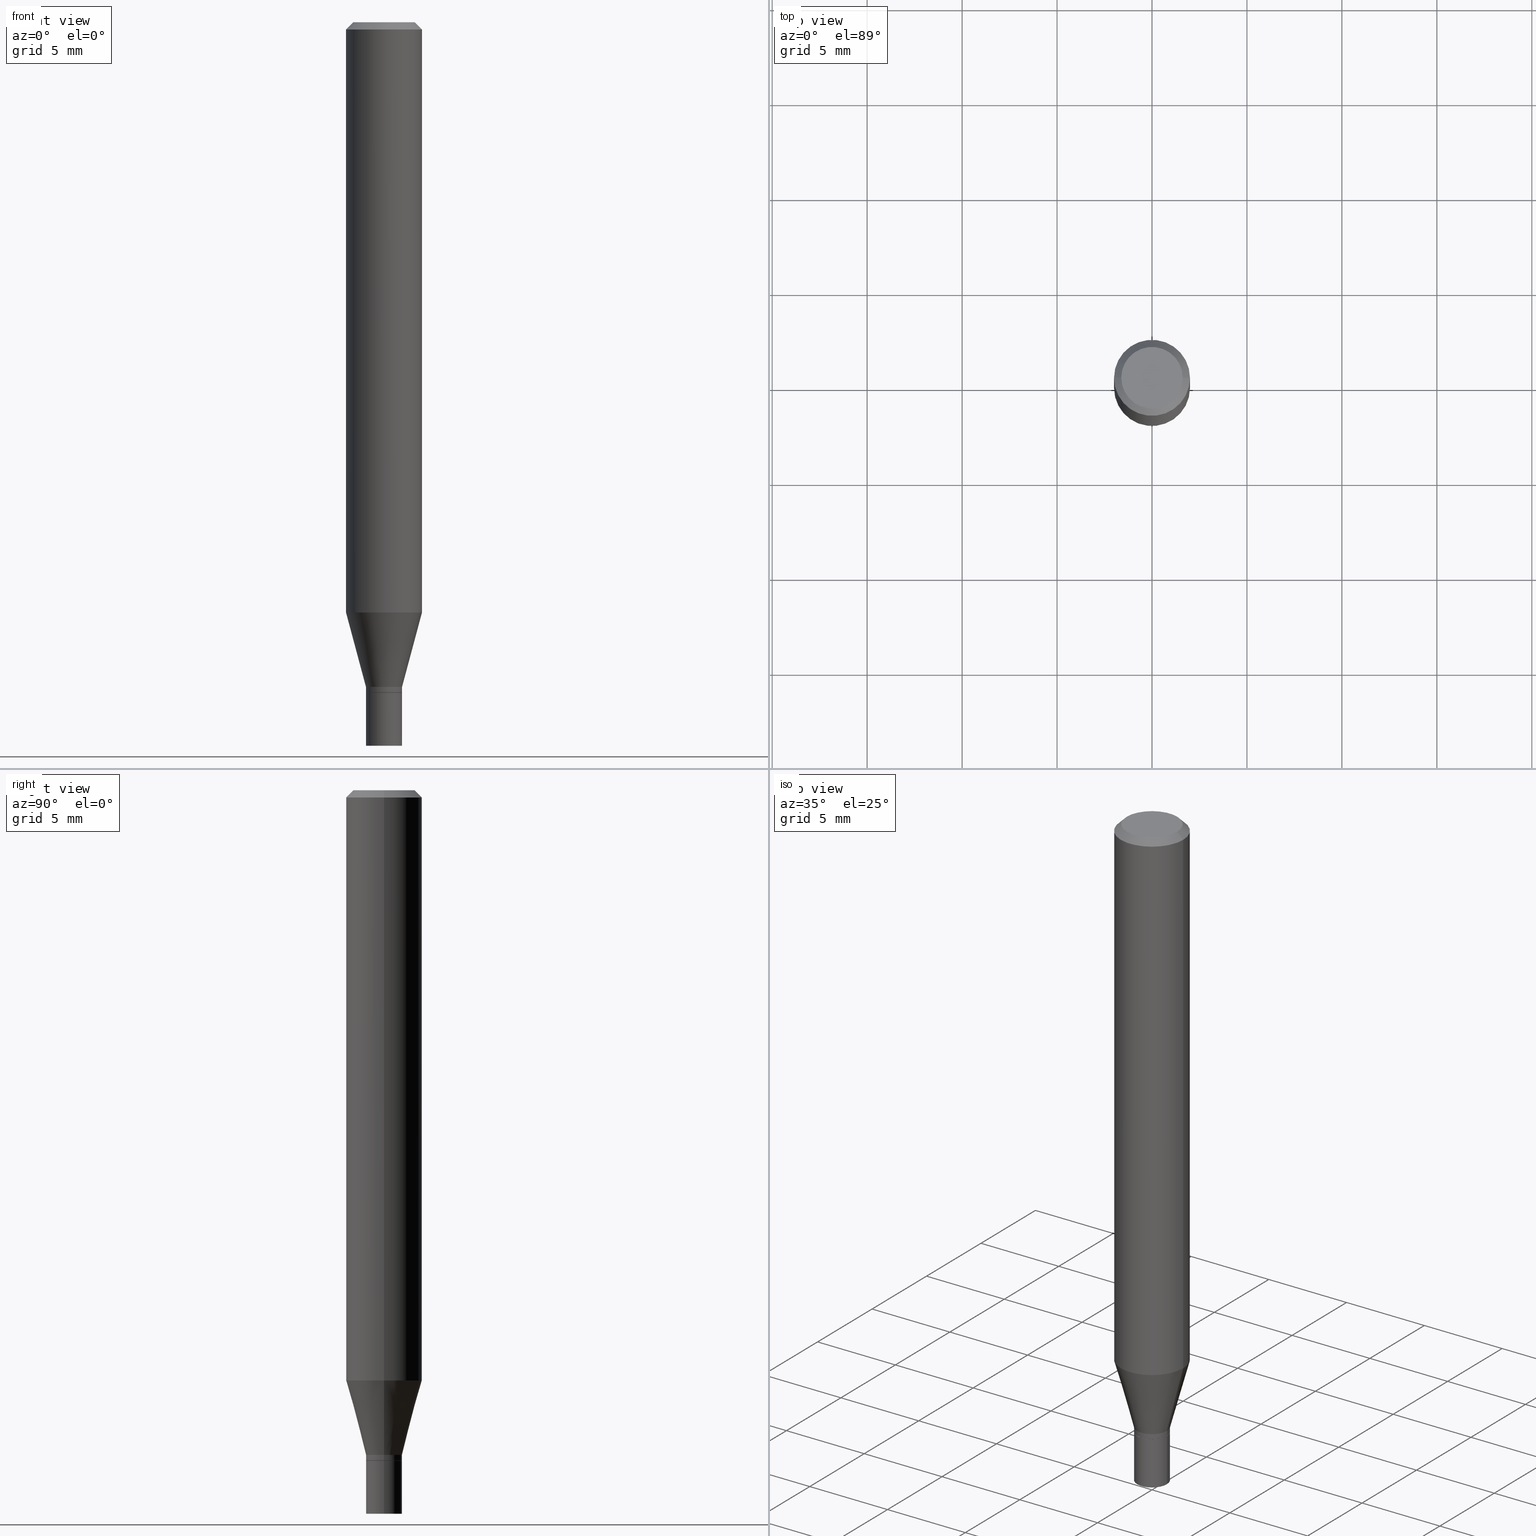
[diagram: canonical four-view strip — front | top / right | iso, engineering-drawing reading convention]
A machine part, canonical four-view strip (front | top / right | iso — engineering-drawing reading convention). The complete STEP part file that produces these views, byte-faithful:
ISO-10303-21;
HEADER;
FILE_DESCRIPTION (( 'STEP AP203' ),
    '1' );
FILE_NAME ('02900.STEP',
    '2024-03-18T22:07:04',
    ( '' ),
    ( '' ),
    'SwSTEP 2.0',
    'SolidWorks 2023',
    '' );
FILE_SCHEMA (( 'CONFIG_CONTROL_DESIGN' ));
ENDSEC;

DATA;
#1 = EDGE_CURVE ( 'NONE', #303, #388, #242, .T. ) ;
#2 = FACE_OUTER_BOUND ( 'NONE', #323, .T. ) ;
#3 = ORIENTED_EDGE ( 'NONE', *, *, #277, .T. ) ;
#4 = DIRECTION ( 'NONE',  ( 2.438088387897960049E-29, -3.491481338843145188E-15, -1.000000000000000000 ) ) ;
#5 = DIRECTION ( 'NONE',  ( 1.000000000000000000, -6.982962677686274599E-15, 0.000000000000000000 ) ) ;
#6 = APPROVAL_STATUS ( 'not_yet_approved' ) ;
#7 = EDGE_CURVE ( 'NONE', #331, #12, #413, .T. ) ;
#8 = CIRCLE ( 'NONE', #70, 0.07875000000000000056 ) ;
#9 = AXIS2_PLACEMENT_3D ( 'NONE', #279, #240, #425 ) ;
#10 = EDGE_LOOP ( 'NONE', ( #258, #186, #53, #362 ) ) ;
#11 = LOCAL_TIME ( 18, 7, 4.000000000000000000, #189 ) ;
#12 = VERTEX_POINT ( 'NONE', #421 ) ;
#13 = CARTESIAN_POINT ( 'NONE',  ( -0.07875000000000000056, -3.712902429742301625E-15, -1.223679699107026897 ) ) ;
#14 = ORIENTED_EDGE ( 'NONE', *, *, #400, .F. ) ;
#15 = DIRECTION ( 'NONE',  ( 1.000000000000000000, -6.982962677686266711E-15, 4.876176775795936353E-29 ) ) ;
#16 = FACE_OUTER_BOUND ( 'NONE', #436, .T. ) ;
#17 = ORIENTED_EDGE ( 'NONE', *, *, #175, .T. ) ;
#18 = PERSON_AND_ORGANIZATION_ROLE ( 'design_owner' ) ;
#19 = ORIENTED_EDGE ( 'NONE', *, *, #319, .T. ) ;
#20 = AXIS2_PLACEMENT_3D ( 'NONE', #341, #203, #5 ) ;
#21 = VECTOR ( 'NONE', #338, 39.37007874015748143 ) ;
#22 = LOCAL_TIME ( 18, 7, 4.000000000000000000, #65 ) ;
#23 = VERTEX_POINT ( 'NONE', #111 ) ;
#24 = EDGE_CURVE ( 'NONE', #238, #457, #8, .T. ) ;
#25 = DIRECTION ( 'NONE',  ( -2.445468806185136597E-29, 3.491481338843145583E-15, 1.000000000000000000 ) ) ;
#26 = ORIENTED_EDGE ( 'NONE', *, *, #434, .F. ) ;
#27 = PERSON_AND_ORGANIZATION_ROLE ( 'creator' ) ;
#28 = CARTESIAN_POINT ( 'NONE',  ( 0.03690000000000000224, -5.110132087530827195E-15, -1.389799999999999924 ) ) ;
#29 = EDGE_LOOP ( 'NONE', ( #410, #148, #19, #288 ) ) ;
#30 = CARTESIAN_POINT ( 'NONE',  ( 2.992470532928248490E-29, -4.272454834153379638E-15, -1.223679699107026897 ) ) ;
#31 = DIRECTION ( 'NONE',  ( 1.000000000000000000, -6.982962677686265922E-15, 4.852736867747365646E-29 ) ) ;
#32 = ORIENTED_EDGE ( 'NONE', *, *, #7, .T. ) ;
#33 = DIRECTION ( 'NONE',  ( -2.445468806185136877E-29, 3.491481338843145188E-15, 1.000000000000000000 ) ) ;
#34 = EDGE_CURVE ( 'NONE', #181, #12, #115, .T. ) ;
#35 = DIRECTION ( 'NONE',  ( 1.000000000000000000, -6.982962677686265922E-15, 4.852736867747365646E-29 ) ) ;
#36 = MANIFOLD_SOLID_BREP ( 'Body-Move/Copy2[1]', #295 ) ;
#37 = AXIS2_PLACEMENT_3D ( 'NONE', #265, #282, #126 ) ;
#38 = CYLINDRICAL_SURFACE ( 'NONE', #183, 0.03740000000000000269 ) ;
#39 = PERSON ( 'UNSPECIFIED', 'UNSPECIFIED', 'UNSPECIFIED', ('UNSPECIFIED'), ('UNSPECIFIED'), ('UNSPECIFIED') ) ;
#40 = CARTESIAN_POINT ( 'NONE',  ( -0.07875000000000000056, 4.975360907851462665E-16, -0.01499999999999999944 ) ) ;
#41 = CYLINDRICAL_SURFACE ( 'NONE', #218, 0.03739999999999991942 ) ;
#42 = CONICAL_SURFACE ( 'NONE', #458, 0.03739999999999991942, 0.2617993877991496854 ) ;
#43 = DIRECTION ( 'NONE',  ( -2.445468806185136597E-29, 3.491481338843145583E-15, 1.000000000000000000 ) ) ;
#44 = EDGE_CURVE ( 'NONE', #12, #331, #327, .T. ) ;
#45 = APPROVAL_ROLE ( '' ) ;
#46 = ADVANCED_FACE ( 'NONE', ( #105 ), #246, .T. ) ;
#47 = PERSON_AND_ORGANIZATION ( #39, #201 ) ;
#48 = ORIENTED_EDGE ( 'NONE', *, *, #227, .T. ) ;
#49 = CYLINDRICAL_SURFACE ( 'NONE', #184, 0.03740000000000000269 ) ;
#50 = AXIS2_PLACEMENT_3D ( 'NONE', #428, #426, #106 ) ;
#51 = ORIENTED_EDGE ( 'NONE', *, *, #286, .F. ) ;
#52 = VERTEX_POINT ( 'NONE', #307 ) ;
#53 = ORIENTED_EDGE ( 'NONE', *, *, #400, .T. ) ;
#54 = DIRECTION ( 'NONE',  ( 1.000000000000000000, 0.000000000000000000, 0.000000000000000000 ) ) ;
#55 = ORIENTED_EDGE ( 'NONE', *, *, #34, .F. ) ;
#56 = ORIENTED_EDGE ( 'NONE', *, *, #180, .T. ) ;
#57 = CC_DESIGN_APPROVAL ( #292, ( #346 ) ) ;
#58 = DATE_AND_TIME ( #377, #11 ) ;
#59 = LINE ( 'NONE', #28, #367 ) ;
#60 = ORIENTED_EDGE ( 'NONE', *, *, #419, .T. ) ;
#61 = EDGE_CURVE ( 'NONE', #388, #303, #334, .T. ) ;
#62 = DIRECTION ( 'NONE',  ( -2.445468806185136597E-29, 3.491481338843145583E-15, 1.000000000000000000 ) ) ;
#63 = LINE ( 'NONE', #122, #168 ) ;
#64 = VECTOR ( 'NONE', #463, 39.37007874015748143 ) ;
#65 = COORDINATED_UNIVERSAL_TIME_OFFSET ( 5, 0, .BEHIND. ) ;
#66 = PLANE ( 'NONE',  #75 ) ;
#67 = EDGE_CURVE ( 'NONE', #259, #457, #206, .T. ) ;
#68 = CARTESIAN_POINT ( 'NONE',  ( 0.06375000000000000111, -5.149965923825448321E-16, 2.075856847527832686E-16 ) ) ;
#69 = LINE ( 'NONE', #245, #64 ) ;
#70 = AXIS2_PLACEMENT_3D ( 'NONE', #251, #276, #350 ) ;
#71 = AXIS2_PLACEMENT_3D ( 'NONE', #383, #73, #389 ) ;
#72 = CARTESIAN_POINT ( 'NONE',  ( 3.668203209277705088E-31, -5.237222008264718399E-17, -0.01499999999999999944 ) ) ;
#73 = DIRECTION ( 'NONE',  ( -2.445468806185136597E-29, 3.491481338843145583E-15, 1.000000000000000000 ) ) ;
#74 = PLANE ( 'NONE',  #9 ) ;
#75 = AXIS2_PLACEMENT_3D ( 'NONE', #86, #195, #263 ) ;
#76 = CARTESIAN_POINT ( 'NONE',  ( 0.000000000000000000, 0.000000000000000000, 0.000000000000000000 ) ) ;
#77 = COORDINATED_UNIVERSAL_TIME_OFFSET ( 5, 0, .BEHIND. ) ;
#78 = ORIENTED_EDGE ( 'NONE', *, *, #80, .F. ) ;
#79 = APPROVAL_ROLE ( '' ) ;
#80 = EDGE_CURVE ( 'NONE', #238, #212, #416, .T. ) ;
#81 = PRODUCT ( '02900', '02900', '', ( #285 ) ) ;
#82 = APPROVAL_STATUS ( 'not_yet_approved' ) ;
#83 = ORIENTED_EDGE ( 'NONE', *, *, #215, .F. ) ;
#84 = ORIENTED_EDGE ( 'NONE', *, *, #24, .T. ) ;
#85 = APPROVAL_DATE_TIME ( #194, #262 ) ;
#86 = CARTESIAN_POINT ( 'NONE',  ( 3.398712546836102570E-29, -4.852460764724203802E-15, -1.389799999999999924 ) ) ;
#87 = VECTOR ( 'NONE', #356, 39.37007874015748143 ) ;
#88 = CARTESIAN_POINT ( 'NONE',  ( 0.000000000000000000, 0.000000000000000000, 0.000000000000000000 ) ) ;
#89 = PRODUCT_DEFINITION_SHAPE ( 'NONE', 'NONE',  #346 ) ;
#90 = PERSON_AND_ORGANIZATION ( #39, #201 ) ;
#91 = DIRECTION ( 'NONE',  ( 1.000000000000000000, -6.982962677686265133E-15, 0.000000000000000000 ) ) ;
#92 = EDGE_LOOP ( 'NONE', ( #84, #255, #229, #78 ) ) ;
#93 = SHAPE_DEFINITION_REPRESENTATION ( #89, #424 ) ;
#94 = CARTESIAN_POINT ( 'NONE',  ( 3.668203209277704895E-29, -5.237222008264718177E-15, -1.500000000000000222 ) ) ;
#95 = AXIS2_PLACEMENT_3D ( 'NONE', #349, #131, #283 ) ;
#96 = VERTEX_POINT ( 'NONE', #314 ) ;
#97 = DIRECTION ( 'NONE',  ( 1.000000000000000000, -6.982962677686261977E-15, 0.000000000000000000 ) ) ;
#98 = ORIENTED_EDGE ( 'NONE', *, *, #109, .F. ) ;
#99 = FACE_OUTER_BOUND ( 'NONE', #147, .T. ) ;
#100 = CARTESIAN_POINT ( 'NONE',  ( -0.07875000000000000056, 5.595524044110789003E-16, -3.873661383575737792E-30 ) ) ;
#101 = ADVANCED_FACE ( 'NONE', ( #453 ), #42, .T. ) ;
#102 = VECTOR ( 'NONE', #450, 39.37007874015748143 ) ;
#103 = LOCAL_TIME ( 18, 7, 4.000000000000000000, #170 ) ;
#104 = CYLINDRICAL_SURFACE ( 'NONE', #234, 0.07875000000000000056 ) ;
#105 = FACE_OUTER_BOUND ( 'NONE', #150, .T. ) ;
#106 = DIRECTION ( 'NONE',  ( 1.000000000000000000, -6.982962677686261189E-15, 0.000000000000000000 ) ) ;
#107 = DIRECTION ( 'NONE',  ( -2.445468806185136597E-29, 3.491481338843145583E-15, 1.000000000000000000 ) ) ;
#108 = FACE_OUTER_BOUND ( 'NONE', #253, .T. ) ;
#109 = EDGE_CURVE ( 'NONE', #457, #238, #250, .T. ) ;
#110 = ORIENTED_EDGE ( 'NONE', *, *, #80, .T. ) ;
#111 = CARTESIAN_POINT ( 'NONE',  ( -0.03739999999999992636, -4.584972040880505697E-15, -1.389300000000000201 ) ) ;
#112 = AXIS2_PLACEMENT_3D ( 'NONE', #379, #62, #312 ) ;
#113 = CALENDAR_DATE ( 2024, 18, 3 ) ;
#114 = ORIENTED_EDGE ( 'NONE', *, *, #61, .F. ) ;
#115 = LINE ( 'NONE', #119, #287 ) ;
#116 = PLANE ( 'NONE',  #352 ) ;
#117 = DIRECTION ( 'NONE',  ( -2.445468806185136597E-29, 3.491481338843145583E-15, 1.000000000000000000 ) ) ;
#118 = DIRECTION ( 'NONE',  ( 1.000000000000000000, -6.982962677686265133E-15, 0.000000000000000000 ) ) ;
#119 = CARTESIAN_POINT ( 'NONE',  ( -0.03740000000000000269, 2.657429831742774886E-16, -1.839681723755335040E-30 ) ) ;
#120 = CONICAL_SURFACE ( 'NONE', #172, 0.07875000000000000056, 0.7853981633974415066 ) ;
#121 = DIRECTION ( 'NONE',  ( -0.2588190451025210170, 5.211531920934547886E-15, 0.9659258262890682012 ) ) ;
#122 = CARTESIAN_POINT ( 'NONE',  ( 0.03740000000000000269, -2.611628041454664002E-16, 1.823690114147680082E-30 ) ) ;
#123 = CYLINDRICAL_SURFACE ( 'NONE', #297, 0.07875000000000000056 ) ;
#124 = AXIS2_PLACEMENT_3D ( 'NONE', #226, #185, #149 ) ;
#125 = ORIENTED_EDGE ( 'NONE', *, *, #128, .T. ) ;
#126 = DIRECTION ( 'NONE',  ( 1.000000000000000000, -6.982962677686265922E-15, 0.000000000000000000 ) ) ;
#127 = FACE_OUTER_BOUND ( 'NONE', #401, .T. ) ;
#128 = EDGE_CURVE ( 'NONE', #303, #139, #59, .T. ) ;
#129 = DIRECTION ( 'NONE',  ( -2.445468806185136597E-29, 3.491481338843145583E-15, 1.000000000000000000 ) ) ;
#130 = DIRECTION ( 'NONE',  ( 2.445468806185136597E-29, -3.491481338843145583E-15, -1.000000000000000000 ) ) ;
#131 = DIRECTION ( 'NONE',  ( -2.445468806185136597E-29, 3.491481338843145583E-15, 1.000000000000000000 ) ) ;
#132 = ORIENTED_EDGE ( 'NONE', *, *, #67, .F. ) ;
#133 =( LENGTH_UNIT ( ) NAMED_UNIT ( * ) SI_UNIT ( $, .METRE. ) );
#134 = VECTOR ( 'NONE', #121, 39.37007874015748143 ) ;
#135 = DIRECTION ( 'NONE',  ( 0.7071067811865426878, -7.319954787623238690E-15, -0.7071067811865523467 ) ) ;
#136 = APPROVAL_PERSON_ORGANIZATION ( #47, #262, #79 ) ;
#137 =( NAMED_UNIT ( * ) PLANE_ANGLE_UNIT ( ) SI_UNIT ( $, .RADIAN. ) );
#138 = FACE_OUTER_BOUND ( 'NONE', #444, .T. ) ;
#139 = VERTEX_POINT ( 'NONE', #336 ) ;
#140 = ORIENTED_EDGE ( 'NONE', *, *, #1, .F. ) ;
#141 = DIRECTION ( 'NONE',  ( -2.438088387897960049E-29, 3.491481338843145188E-15, 1.000000000000000000 ) ) ;
#142 = EDGE_LOOP ( 'NONE', ( #17, #60 ) ) ;
#143 = AXIS2_PLACEMENT_3D ( 'NONE', #260, #25, #348 ) ;
#144 = CIRCLE ( 'NONE', #37, 0.07875000000000000056 ) ;
#145 = VERTEX_POINT ( 'NONE', #230 ) ;
#146 = CARTESIAN_POINT ( 'NONE',  ( 0.07875000000000000056, -4.822363145021172984E-15, -1.223679699107026897 ) ) ;
#147 = EDGE_LOOP ( 'NONE', ( #231, #222, #125, #335 ) ) ;
#148 = ORIENTED_EDGE ( 'NONE', *, *, #434, .T. ) ;
#149 = DIRECTION ( 'NONE',  ( -1.000000000000000000, 6.982962677686265922E-15, 0.000000000000000000 ) ) ;
#150 = EDGE_LOOP ( 'NONE', ( #452, #174, #371, #14 ) ) ;
#151 = APPROVAL_ROLE ( '' ) ;
#152 = ORIENTED_EDGE ( 'NONE', *, *, #128, .F. ) ;
#153 = CC_DESIGN_DATE_AND_TIME_ASSIGNMENT ( #326, #361, ( #346 ) ) ;
#154 = DIRECTION ( 'NONE',  ( -2.445468806185136597E-29, 3.491481338843145583E-15, 1.000000000000000000 ) ) ;
#155 = CONICAL_SURFACE ( 'NONE', #403, 0.03690000000000000224, 0.7853981633974739252 ) ;
#156 = CC_DESIGN_APPROVAL ( #462, ( #459 ) ) ;
#157 = ORIENTED_EDGE ( 'NONE', *, *, #324, .T. ) ;
#158 = DIRECTION ( 'NONE',  ( 1.000000000000000000, -6.982962677686264344E-15, 0.000000000000000000 ) ) ;
#159 = EDGE_CURVE ( 'NONE', #23, #139, #378, .T. ) ;
#160 = PERSON_AND_ORGANIZATION ( #39, #201 ) ;
#161 = FACE_OUTER_BOUND ( 'NONE', #29, .T. ) ;
#162 = CARTESIAN_POINT ( 'NONE',  ( 3.668203209277705088E-31, -5.237222008264718399E-17, -0.01499999999999999944 ) ) ;
#163 = APPROVAL_PERSON_ORGANIZATION ( #90, #462, #151 ) ;
#164 = EDGE_CURVE ( 'NONE', #23, #259, #190, .T. ) ;
#165 = CARTESIAN_POINT ( 'NONE',  ( 0.000000000000000000, 0.000000000000000000, 0.000000000000000000 ) ) ;
#166 = DIRECTION ( 'NONE',  ( -2.445468806185136597E-29, 3.491481338843145583E-15, 1.000000000000000000 ) ) ;
#167 = FACE_OUTER_BOUND ( 'NONE', #221, .T. ) ;
#168 = VECTOR ( 'NONE', #340, 39.37007874015748143 ) ;
#169 = LINE ( 'NONE', #439, #448 ) ;
#170 = COORDINATED_UNIVERSAL_TIME_OFFSET ( 5, 0, .BEHIND. ) ;
#171 =( NAMED_UNIT ( * ) SI_UNIT ( $, .STERADIAN. ) SOLID_ANGLE_UNIT ( ) );
#172 = AXIS2_PLACEMENT_3D ( 'NONE', #162, #130, #210 ) ;
#173 = CARTESIAN_POINT ( 'NONE',  ( 3.576687321579069994E-29, -5.368277968210015545E-15, -1.500000000000000222 ) ) ;
#174 = ORIENTED_EDGE ( 'NONE', *, *, #164, .T. ) ;
#175 = EDGE_CURVE ( 'NONE', #300, #188, #273, .T. ) ;
#176 = APPLICATION_PROTOCOL_DEFINITION ( 'international standard', 'config_control_design', 1994, #382 ) ;
#177 = EDGE_LOOP ( 'NONE', ( #140, #114 ) ) ;
#178 = DIRECTION ( 'NONE',  ( -2.445468806185136597E-29, 3.491481338843145583E-15, 1.000000000000000000 ) ) ;
#179 = ADVANCED_FACE ( 'NONE', ( #237 ), #123, .T. ) ;
#180 = EDGE_CURVE ( 'NONE', #145, #331, #63, .T. ) ;
#181 = VERTEX_POINT ( 'NONE', #412 ) ;
#182 = APPROVAL_STATUS ( 'not_yet_approved' ) ;
#183 = AXIS2_PLACEMENT_3D ( 'NONE', #165, #166, #354 ) ;
#184 = AXIS2_PLACEMENT_3D ( 'NONE', #216, #178, #290 ) ;
#185 = DIRECTION ( 'NONE',  ( 2.445468806185136597E-29, -3.491481338843145583E-15, -1.000000000000000000 ) ) ;
#186 = ORIENTED_EDGE ( 'NONE', *, *, #159, .T. ) ;
#187 = CARTESIAN_POINT ( 'NONE',  ( -0.03690000000000000224, -4.590270495228727310E-15, -1.389799999999999924 ) ) ;
#188 = VERTEX_POINT ( 'NONE', #68 ) ;
#189 = COORDINATED_UNIVERSAL_TIME_OFFSET ( 5, 0, .BEHIND. ) ;
#190 = LINE ( 'NONE', #310, #102 ) ;
#191 = EDGE_CURVE ( 'NONE', #388, #23, #405, .T. ) ;
#192 = CIRCLE ( 'NONE', #432, 0.03739999999999992636 ) ;
#193 = ORIENTED_EDGE ( 'NONE', *, *, #109, .T. ) ;
#194 = DATE_AND_TIME ( #224, #22 ) ;
#195 = DIRECTION ( 'NONE',  ( -2.438088387897960049E-29, 3.491481338843145188E-15, 1.000000000000000000 ) ) ;
#196 = UNCERTAINTY_MEASURE_WITH_UNIT (LENGTH_MEASURE( 1.000000000000000082E-05 ), #365, 'distance_accuracy_value', 'NONE');
#197 = DIRECTION ( 'NONE',  ( -2.445468806185136597E-29, 3.491481338843145583E-15, 1.000000000000000000 ) ) ;
#198 = EDGE_CURVE ( 'NONE', #139, #23, #192, .T. ) ;
#199 = FACE_OUTER_BOUND ( 'NONE', #10, .T. ) ;
#200 = CIRCLE ( 'NONE', #208, 0.03740000000000000269 ) ;
#201 = ORGANIZATION ( 'UNSPECIFIED', 'UNSPECIFIED', '' ) ;
#202 = CARTESIAN_POINT ( 'NONE',  ( 3.398712546836102570E-29, -4.852460764724203802E-15, -1.389799999999999924 ) ) ;
#203 = DIRECTION ( 'NONE',  ( -2.445468806185136597E-29, 3.491481338843145583E-15, 1.000000000000000000 ) ) ;
#204 = PRODUCT_RELATED_PRODUCT_CATEGORY ( 'detail', '', ( #81 ) ) ;
#205 = CARTESIAN_POINT ( 'NONE',  ( 0.03739999999999991942, -2.611628041454658086E-16, 1.823690114147676228E-30 ) ) ;
#206 = LINE ( 'NONE', #235, #134 ) ;
#207 = LINE ( 'NONE', #205, #87 ) ;
#208 = AXIS2_PLACEMENT_3D ( 'NONE', #94, #233, #345 ) ;
#209 = LOCAL_TIME ( 18, 7, 4.000000000000000000, #77 ) ;
#210 = DIRECTION ( 'NONE',  ( -1.000000000000000000, 6.982962677686265922E-15, 0.000000000000000000 ) ) ;
#211 = CC_DESIGN_PERSON_AND_ORGANIZATION_ASSIGNMENT ( #392, #254, ( #346 ) ) ;
#212 = VERTEX_POINT ( 'NONE', #445 ) ;
#213 = CALENDAR_DATE ( 2024, 18, 3 ) ;
#214 = ORIENTED_EDGE ( 'NONE', *, *, #357, .T. ) ;
#215 = EDGE_CURVE ( 'NONE', #181, #145, #200, .T. ) ;
#216 = CARTESIAN_POINT ( 'NONE',  ( 0.000000000000000000, 0.000000000000000000, 0.000000000000000000 ) ) ;
#217 = CC_DESIGN_PERSON_AND_ORGANIZATION_ASSIGNMENT ( #411, #304, ( #360 ) ) ;
#218 = AXIS2_PLACEMENT_3D ( 'NONE', #76, #107, #466 ) ;
#219 = DIRECTION ( 'NONE',  ( 0.000000000000000000, 0.000000000000000000, 1.000000000000000000 ) ) ;
#220 = AXIS2_PLACEMENT_3D ( 'NONE', #173, #141, #443 ) ;
#221 = EDGE_LOOP ( 'NONE', ( #26, #313, #157, #429 ) ) ;
#222 = ORIENTED_EDGE ( 'NONE', *, *, #61, .T. ) ;
#223 = EDGE_LOOP ( 'NONE', ( #132, #3, #214, #98 ) ) ;
#224 = CALENDAR_DATE ( 2024, 18, 3 ) ;
#225 = CIRCLE ( 'NONE', #112, 0.03740000000000000269 ) ;
#226 = CARTESIAN_POINT ( 'NONE',  ( 3.668203209277705088E-31, -5.237222008264718399E-17, -0.01499999999999999944 ) ) ;
#227 = EDGE_CURVE ( 'NONE', #145, #181, #225, .T. ) ;
#228 = CARTESIAN_POINT ( 'NONE',  ( 3.369856014923118508E-29, -4.811261284925855529E-15, -1.378000000000000114 ) ) ;
#229 = ORIENTED_EDGE ( 'NONE', *, *, #319, .F. ) ;
#230 = CARTESIAN_POINT ( 'NONE',  ( 0.03740000000000000269, -5.498384812410185366E-15, -1.500000000000000222 ) ) ;
#231 = ORIENTED_EDGE ( 'NONE', *, *, #191, .F. ) ;
#232 = DATE_AND_TIME ( #301, #244 ) ;
#233 = DIRECTION ( 'NONE',  ( -2.445468806185136597E-29, 3.491481338843145583E-15, 1.000000000000000000 ) ) ;
#234 = AXIS2_PLACEMENT_3D ( 'NONE', #275, #278, #418 ) ;
#235 = CARTESIAN_POINT ( 'NONE',  ( -0.03739999999999991942, -4.545518301751578928E-15, -1.378000000000000114 ) ) ;
#236 = APPROVAL_PERSON_ORGANIZATION ( #261, #292, #45 ) ;
#237 = FACE_OUTER_BOUND ( 'NONE', #92, .T. ) ;
#238 = VERTEX_POINT ( 'NONE', #146 ) ;
#239 = DIRECTION ( 'NONE',  ( -2.445468806185136597E-29, 3.491481338843145583E-15, 1.000000000000000000 ) ) ;
#240 = DIRECTION ( 'NONE',  ( 2.438088387897960049E-29, -3.491481338843145188E-15, -1.000000000000000000 ) ) ;
#241 = DIRECTION ( 'NONE',  ( -2.445468806185136877E-29, 3.491481338843145188E-15, 1.000000000000000000 ) ) ;
#242 = CIRCLE ( 'NONE', #143, 0.03690000000000000224 ) ;
#243 = CONICAL_SURFACE ( 'NONE', #280, 0.03739999999999991942, 0.2617993877991496854 ) ;
#244 = LOCAL_TIME ( 18, 7, 4.000000000000000000, #455 ) ;
#245 = CARTESIAN_POINT ( 'NONE',  ( 0.03739999999999991942, -5.072424089071321140E-15, -1.378000000000000114 ) ) ;
#246 = CYLINDRICAL_SURFACE ( 'NONE', #415, 0.03739999999999991942 ) ;
#247 = ADVANCED_FACE ( 'NONE', ( #302 ), #66, .F. ) ;
#248 = CARTESIAN_POINT ( 'NONE',  ( -5.076443166735047805E-45, 7.247815445253071091E-31, 2.075856847527799160E-16 ) ) ;
#249 = LINE ( 'NONE', #100, #385 ) ;
#250 = CIRCLE ( 'NONE', #316, 0.07875000000000000056 ) ;
#251 = CARTESIAN_POINT ( 'NONE',  ( 2.992470532928248490E-29, -4.272454834153379638E-15, -1.223679699107026897 ) ) ;
#252 = APPROVAL_DATE_TIME ( #325, #292 ) ;
#253 = EDGE_LOOP ( 'NONE', ( #374, #193, #110, #51 ) ) ;
#254 = PERSON_AND_ORGANIZATION_ROLE ( 'creator' ) ;
#255 = ORIENTED_EDGE ( 'NONE', *, *, #353, .T. ) ;
#256 = CARTESIAN_POINT ( 'NONE',  ( 3.398712546836102570E-29, -4.852460764724203802E-15, -1.389799999999999924 ) ) ;
#257 = VECTOR ( 'NONE', #318, 39.37007874015748143 ) ;
#258 = ORIENTED_EDGE ( 'NONE', *, *, #164, .F. ) ;
#259 = VERTEX_POINT ( 'NONE', #343 ) ;
#260 = CARTESIAN_POINT ( 'NONE',  ( 3.398712546836102570E-29, -4.852460764724203802E-15, -1.389799999999999924 ) ) ;
#261 = PERSON_AND_ORGANIZATION ( #39, #201 ) ;
#262 = APPROVAL ( #6, 'UNSPECIFIED' ) ;
#263 = DIRECTION ( 'NONE',  ( 1.000000000000000000, -6.982962677686265922E-15, 4.876176775795935793E-29 ) ) ;
#264 = CONICAL_SURFACE ( 'NONE', #71, 0.03690000000000000224, 0.7853981633974739252 ) ;
#265 = CARTESIAN_POINT ( 'NONE',  ( 3.668203209277705088E-31, -5.237222008264718399E-17, -0.01499999999999999944 ) ) ;
#266 = ADVANCED_FACE ( 'NONE', ( #161 ), #423, .T. ) ;
#267 = PERSON_AND_ORGANIZATION ( #39, #201 ) ;
#268 = DIRECTION ( 'NONE',  ( -2.445468806185136597E-29, 3.491481338843145583E-15, 1.000000000000000000 ) ) ;
#269 = ORIENTED_EDGE ( 'NONE', *, *, #227, .F. ) ;
#270 = CARTESIAN_POINT ( 'NONE',  ( -5.076443166735047805E-45, 7.247815445253071091E-31, 2.075856847527799160E-16 ) ) ;
#271 = AXIS2_PLACEMENT_3D ( 'NONE', #256, #409, #320 ) ;
#272 = DIRECTION ( 'NONE',  ( 1.000000000000000000, -6.982962677686265922E-15, 4.876176775795935232E-29 ) ) ;
#273 = CIRCLE ( 'NONE', #339, 0.06375000000000000111 ) ;
#274 = CARTESIAN_POINT ( 'NONE',  ( 0.000000000000000000, 0.000000000000000000, 0.000000000000000000 ) ) ;
#275 = CARTESIAN_POINT ( 'NONE',  ( 0.000000000000000000, 0.000000000000000000, 0.000000000000000000 ) ) ;
#276 = DIRECTION ( 'NONE',  ( -2.445468806185136597E-29, 3.491481338843145583E-15, 1.000000000000000000 ) ) ;
#277 = EDGE_CURVE ( 'NONE', #259, #96, #351, .T. ) ;
#278 = DIRECTION ( 'NONE',  ( -2.445468806185136597E-29, 3.491481338843145583E-15, 1.000000000000000000 ) ) ;
#279 = CARTESIAN_POINT ( 'NONE',  ( 4.451638707024993845E-16, 0.06375000000000000111, -1.187890929748605601E-16 ) ) ;
#280 = AXIS2_PLACEMENT_3D ( 'NONE', #358, #43, #315 ) ;
#281 = AXIS2_PLACEMENT_3D ( 'NONE', #248, #460, #35 ) ;
#282 = DIRECTION ( 'NONE',  ( -2.445468806185136597E-29, 3.491481338843145583E-15, 1.000000000000000000 ) ) ;
#283 = DIRECTION ( 'NONE',  ( 1.000000000000000000, -6.982962677686265133E-15, 0.000000000000000000 ) ) ;
#284 = ORIENTED_EDGE ( 'NONE', *, *, #7, .F. ) ;
#285 = MECHANICAL_CONTEXT ( 'NONE', #382, 'mechanical' ) ;
#286 = EDGE_CURVE ( 'NONE', #52, #212, #144, .T. ) ;
#287 = VECTOR ( 'NONE', #438, 39.37007874015748143 ) ;
#288 = ORIENTED_EDGE ( 'NONE', *, *, #324, .F. ) ;
#289 = CIRCLE ( 'NONE', #95, 0.03739999999999991942 ) ;
#290 = DIRECTION ( 'NONE',  ( 1.000000000000000000, -6.982962677686266711E-15, 4.876176775795935793E-29 ) ) ;
#291 = FACE_OUTER_BOUND ( 'NONE', #417, .T. ) ;
#292 = APPROVAL ( #82, 'UNSPECIFIED' ) ;
#293 = ORIENTED_EDGE ( 'NONE', *, *, #191, .T. ) ;
#294 = LENGTH_MEASURE_WITH_UNIT ( LENGTH_MEASURE( 0.02539999999999999897 ), #133 );
#295 = CLOSED_SHELL ( 'NONE', ( #306, #451, #442, #454 ) ) ;
#296 = ORIENTED_EDGE ( 'NONE', *, *, #215, .T. ) ;
#297 = AXIS2_PLACEMENT_3D ( 'NONE', #88, #376, #272 ) ;
#298 = ORIENTED_EDGE ( 'NONE', *, *, #1, .T. ) ;
#299 = CC_DESIGN_PERSON_AND_ORGANIZATION_ASSIGNMENT ( #160, #342, ( #459 ) ) ;
#300 = VERTEX_POINT ( 'NONE', #461 ) ;
#301 = CALENDAR_DATE ( 2024, 18, 3 ) ;
#302 = FACE_OUTER_BOUND ( 'NONE', #177, .T. ) ;
#303 = VERTEX_POINT ( 'NONE', #420 ) ;
#304 = PERSON_AND_ORGANIZATION_ROLE ( 'design_supplier' ) ;
#305 = CARTESIAN_POINT ( 'NONE',  ( 3.369856014923118508E-29, -4.811261284925855529E-15, -1.378000000000000114 ) ) ;
#306 = ADVANCED_FACE ( 'NONE', ( #2 ), #38, .T. ) ;
#307 = CARTESIAN_POINT ( 'NONE',  ( -0.07875000000000000056, -1.602861122706934557E-15, -0.01499999999999999944 ) ) ;
#308 = ORIENTED_EDGE ( 'NONE', *, *, #44, .F. ) ;
#309 = EDGE_CURVE ( 'NONE', #96, #259, #289, .T. ) ;
#310 = CARTESIAN_POINT ( 'NONE',  ( -0.03739999999999991942, 2.657429831742768970E-16, -1.839681723755330837E-30 ) ) ;
#311 = CC_DESIGN_SECURITY_CLASSIFICATION ( #459, ( #360 ) ) ;
#312 = DIRECTION ( 'NONE',  ( 1.000000000000000000, -6.982962677686274599E-15, 0.000000000000000000 ) ) ;
#313 = ORIENTED_EDGE ( 'NONE', *, *, #175, .F. ) ;
#314 = CARTESIAN_POINT ( 'NONE',  ( 0.03739999999999991942, -5.072424089071321140E-15, -1.378000000000000114 ) ) ;
#315 = DIRECTION ( 'NONE',  ( 1.000000000000000000, -6.982962677686265133E-15, 0.000000000000000000 ) ) ;
#316 = AXIS2_PLACEMENT_3D ( 'NONE', #30, #402, #97 ) ;
#317 = FACE_OUTER_BOUND ( 'NONE', #142, .T. ) ;
#318 = DIRECTION ( 'NONE',  ( -0.7071067811865426878, 2.468850131082206573E-15, -0.7071067811865523467 ) ) ;
#319 = EDGE_CURVE ( 'NONE', #212, #52, #359, .T. ) ;
#320 = DIRECTION ( 'NONE',  ( 1.000000000000000000, -6.982962677686274599E-15, 0.000000000000000000 ) ) ;
#321 = DIRECTION ( 'NONE',  ( 1.000000000000000000, -6.982962677686265922E-15, 0.000000000000000000 ) ) ;
#322 = DIRECTION ( 'NONE',  ( 1.000000000000000000, -6.982962677686261189E-15, 0.000000000000000000 ) ) ;
#323 = EDGE_LOOP ( 'NONE', ( #48, #399, #284, #355 ) ) ;
#324 = EDGE_CURVE ( 'NONE', #300, #52, #422, .T. ) ;
#325 = DATE_AND_TIME ( #113, #103 ) ;
#326 = DATE_AND_TIME ( #213, #209 ) ;
#327 = CIRCLE ( 'NONE', #271, 0.03740000000000000269 ) ;
#328 = CIRCLE ( 'NONE', #281, 0.06375000000000000111 ) ;
#329 = CC_DESIGN_PERSON_AND_ORGANIZATION_ASSIGNMENT ( #332, #18, ( #81 ) ) ;
#330 = ORIENTED_EDGE ( 'NONE', *, *, #309, .T. ) ;
#331 = VERTEX_POINT ( 'NONE', #427 ) ;
#332 = PERSON_AND_ORGANIZATION ( #39, #201 ) ;
#333 = ORIENTED_EDGE ( 'NONE', *, *, #67, .T. ) ;
#334 = CIRCLE ( 'NONE', #50, 0.03690000000000000224 ) ;
#335 = ORIENTED_EDGE ( 'NONE', *, *, #159, .F. ) ;
#336 = CARTESIAN_POINT ( 'NONE',  ( 0.03739999999999992636, -5.111877828200247910E-15, -1.389300000000000201 ) ) ;
#337 = ORIENTED_EDGE ( 'NONE', *, *, #24, .F. ) ;
#338 = DIRECTION ( 'NONE',  ( -0.7071067811865656694, 7.493145998870420424E-15, 0.7071067811865294761 ) ) ;
#339 = AXIS2_PLACEMENT_3D ( 'NONE', #270, #268, #31 ) ;
#340 = DIRECTION ( 'NONE',  ( -2.445468806185136877E-29, 3.491481338843145188E-15, 1.000000000000000000 ) ) ;
#341 = CARTESIAN_POINT ( 'NONE',  ( 3.398712546836102570E-29, -4.852460764724203802E-15, -1.389799999999999924 ) ) ;
#342 = PERSON_AND_ORGANIZATION_ROLE ( 'classification_officer' ) ;
#343 = CARTESIAN_POINT ( 'NONE',  ( -0.03739999999999991942, -4.129210365746939882E-15, -1.378000000000000114 ) ) ;
#344 = ADVANCED_FACE ( 'NONE', ( #108 ), #104, .T. ) ;
#345 = DIRECTION ( 'NONE',  ( 1.000000000000000000, -6.982962677686274599E-15, 0.000000000000000000 ) ) ;
#346 = PRODUCT_DEFINITION ( 'UNKNOWN', '', #360, #464 ) ;
#347 = MANIFOLD_SOLID_BREP ( 'Body-Move/Copy2[2]', #447 ) ;
#348 = DIRECTION ( 'NONE',  ( 1.000000000000000000, -6.982962677686261189E-15, 0.000000000000000000 ) ) ;
#349 = CARTESIAN_POINT ( 'NONE',  ( 3.369856014923118508E-29, -4.811261284925855529E-15, -1.378000000000000114 ) ) ;
#350 = DIRECTION ( 'NONE',  ( 1.000000000000000000, -6.982962677686261977E-15, 0.000000000000000000 ) ) ;
#351 = CIRCLE ( 'NONE', #465, 0.03739999999999991942 ) ;
#352 = AXIS2_PLACEMENT_3D ( 'NONE', #435, #4, #433 ) ;
#353 = EDGE_CURVE ( 'NONE', #457, #52, #249, .T. ) ;
#354 = DIRECTION ( 'NONE',  ( 1.000000000000000000, -6.982962677686266711E-15, 4.876176775795935793E-29 ) ) ;
#355 = ORIENTED_EDGE ( 'NONE', *, *, #180, .F. ) ;
#356 = DIRECTION ( 'NONE',  ( -2.445468806185136877E-29, 3.491481338843145188E-15, 1.000000000000000000 ) ) ;
#357 = EDGE_CURVE ( 'NONE', #96, #238, #69, .T. ) ;
#358 = CARTESIAN_POINT ( 'NONE',  ( 3.369856014923118508E-29, -4.811261284925855529E-15, -1.378000000000000114 ) ) ;
#359 = CIRCLE ( 'NONE', #391, 0.07875000000000000056 ) ;
#360 = PRODUCT_DEFINITION_FORMATION_WITH_SPECIFIED_SOURCE ( 'ANY', '', #81, .NOT_KNOWN. ) ;
#361 = DATE_TIME_ROLE ( 'creation_date' ) ;
#362 = ORIENTED_EDGE ( 'NONE', *, *, #277, .F. ) ;
#363 = VECTOR ( 'NONE', #33, 39.37007874015748143 ) ;
#364 = ORIENTED_EDGE ( 'NONE', *, *, #357, .F. ) ;
#365 =( CONVERSION_BASED_UNIT ( 'INCH', #294 ) LENGTH_UNIT ( ) NAMED_UNIT ( #441 ) );
#366 = ADVANCED_FACE ( 'NONE', ( #99 ), #155, .T. ) ;
#367 = VECTOR ( 'NONE', #456, 39.37007874015748143 ) ;
#368 = DATE_TIME_ROLE ( 'classification_date' ) ;
#369 = CARTESIAN_POINT ( 'NONE',  ( 0.07875000000000000056, -5.499083108677934443E-16, 3.839989210939299016E-30 ) ) ;
#370 = ORIENTED_EDGE ( 'NONE', *, *, #44, .T. ) ;
#371 = ORIENTED_EDGE ( 'NONE', *, *, #309, .F. ) ;
#372 = APPLICATION_CONTEXT ( 'configuration controlled 3d designs of mechanical parts and assemblies' ) ;
#373 = CARTESIAN_POINT ( 'NONE',  ( 3.397489812433010889E-29, -4.850715024054782298E-15, -1.389300000000000201 ) ) ;
#374 = ORIENTED_EDGE ( 'NONE', *, *, #353, .F. ) ;
#375 = APPROVAL_DATE_TIME ( #58, #462 ) ;
#376 = DIRECTION ( 'NONE',  ( -2.445468806185136597E-29, 3.491481338843145583E-15, 1.000000000000000000 ) ) ;
#377 = CALENDAR_DATE ( 2024, 18, 3 ) ;
#378 = CIRCLE ( 'NONE', #395, 0.03739999999999992636 ) ;
#379 = CARTESIAN_POINT ( 'NONE',  ( 3.668203209277704895E-29, -5.237222008264718177E-15, -1.500000000000000222 ) ) ;
#380 = ADVANCED_FACE ( 'NONE', ( #317 ), #74, .F. ) ;
#381 = CARTESIAN_POINT ( 'NONE',  ( 3.397489812433010889E-29, -4.850715024054782298E-15, -1.389300000000000201 ) ) ;
#382 = APPLICATION_CONTEXT ( 'configuration controlled 3d designs of mechanical parts and assemblies' ) ;
#383 = CARTESIAN_POINT ( 'NONE',  ( 3.398712546836102570E-29, -4.852460764724203802E-15, -1.389799999999999924 ) ) ;
#384 = DIRECTION ( 'NONE',  ( -2.445468806185136597E-29, 3.491481338843145583E-15, 1.000000000000000000 ) ) ;
#385 = VECTOR ( 'NONE', #241, 39.37007874015748143 ) ;
#386 = CARTESIAN_POINT ( 'NONE',  ( -0.03690000000000000224, -4.587621268054616109E-15, -1.389799999999999924 ) ) ;
#387 = FACE_OUTER_BOUND ( 'NONE', #393, .T. ) ;
#388 = VERTEX_POINT ( 'NONE', #386 ) ;
#389 = DIRECTION ( 'NONE',  ( 1.000000000000000000, -6.982962677686261189E-15, 0.000000000000000000 ) ) ;
#390 = ADVANCED_FACE ( 'NONE', ( #127 ), #264, .T. ) ;
#391 = AXIS2_PLACEMENT_3D ( 'NONE', #72, #384, #321 ) ;
#392 = PERSON_AND_ORGANIZATION ( #39, #201 ) ;
#393 = EDGE_LOOP ( 'NONE', ( #330, #333, #337, #364 ) ) ;
#394 = ORIENTED_EDGE ( 'NONE', *, *, #198, .F. ) ;
#395 = AXIS2_PLACEMENT_3D ( 'NONE', #381, #154, #408 ) ;
#396 = CC_DESIGN_DATE_AND_TIME_ASSIGNMENT ( #232, #368, ( #459 ) ) ;
#397 = PLANE ( 'NONE',  #220 ) ;
#398 = CARTESIAN_POINT ( 'NONE',  ( 0.000000000000000000, 0.000000000000000000, 0.000000000000000000 ) ) ;
#399 = ORIENTED_EDGE ( 'NONE', *, *, #34, .T. ) ;
#400 = EDGE_CURVE ( 'NONE', #139, #96, #207, .T. ) ;
#401 = EDGE_LOOP ( 'NONE', ( #298, #293, #394, #152 ) ) ;
#402 = DIRECTION ( 'NONE',  ( -2.445468806185136597E-29, 3.491481338843145583E-15, 1.000000000000000000 ) ) ;
#403 = AXIS2_PLACEMENT_3D ( 'NONE', #202, #129, #322 ) ;
#404 = CC_DESIGN_APPROVAL ( #262, ( #360 ) ) ;
#405 = LINE ( 'NONE', #187, #21 ) ;
#406 = ADVANCED_FACE ( 'NONE', ( #199 ), #41, .T. ) ;
#407 = SECURITY_CLASSIFICATION_LEVEL ( 'unclassified' ) ;
#408 = DIRECTION ( 'NONE',  ( 1.000000000000000000, -6.982962677686264344E-15, 0.000000000000000000 ) ) ;
#409 = DIRECTION ( 'NONE',  ( -2.445468806185136597E-29, 3.491481338843145583E-15, 1.000000000000000000 ) ) ;
#410 = ORIENTED_EDGE ( 'NONE', *, *, #419, .F. ) ;
#411 = PERSON_AND_ORGANIZATION ( #39, #201 ) ;
#412 = CARTESIAN_POINT ( 'NONE',  ( -0.03740000000000000269, -4.779098403320183994E-15, -1.500000000000000222 ) ) ;
#413 = CIRCLE ( 'NONE', #20, 0.03740000000000000269 ) ;
#414 = ADVANCED_FACE ( 'NONE', ( #167 ), #120, .T. ) ;
#415 = AXIS2_PLACEMENT_3D ( 'NONE', #274, #239, #15 ) ;
#416 = LINE ( 'NONE', #369, #363 ) ;
#417 = EDGE_LOOP ( 'NONE', ( #55, #296, #56, #308 ) ) ;
#418 = DIRECTION ( 'NONE',  ( 1.000000000000000000, -6.982962677686265922E-15, 4.876176775795935232E-29 ) ) ;
#419 = EDGE_CURVE ( 'NONE', #188, #300, #328, .T. ) ;
#420 = CARTESIAN_POINT ( 'NONE',  ( 0.03690000000000000224, -5.110132087530827195E-15, -1.389799999999999924 ) ) ;
#421 = CARTESIAN_POINT ( 'NONE',  ( -0.03740000000000000269, -4.779098403320183994E-15, -1.389799999999999924 ) ) ;
#422 = LINE ( 'NONE', #40, #257 ) ;
#423 = CONICAL_SURFACE ( 'NONE', #124, 0.07875000000000000056, 0.7853981633974415066 ) ;
#424 = ADVANCED_BREP_SHAPE_REPRESENTATION ( '02900', ( #36, #347, #449 ), #440 ) ;
#425 = DIRECTION ( 'NONE',  ( -1.000000000000000000, 6.982962677686265922E-15, -4.876176775795935793E-29 ) ) ;
#426 = DIRECTION ( 'NONE',  ( -2.445468806185136597E-29, 3.491481338843145583E-15, 1.000000000000000000 ) ) ;
#427 = CARTESIAN_POINT ( 'NONE',  ( 0.03740000000000000269, -5.113623568869670202E-15, -1.389799999999999924 ) ) ;
#428 = CARTESIAN_POINT ( 'NONE',  ( 3.398712546836102570E-29, -4.852460764724203802E-15, -1.389799999999999924 ) ) ;
#429 = ORIENTED_EDGE ( 'NONE', *, *, #286, .T. ) ;
#430 = ADVANCED_FACE ( 'NONE', ( #387 ), #243, .T. ) ;
#431 = APPLICATION_PROTOCOL_DEFINITION ( 'international standard', 'config_control_design', 1994, #372 ) ;
#432 = AXIS2_PLACEMENT_3D ( 'NONE', #373, #197, #158 ) ;
#433 = DIRECTION ( 'NONE',  ( -1.000000000000000000, 6.982962677686265922E-15, -4.876176775795935793E-29 ) ) ;
#434 = EDGE_CURVE ( 'NONE', #188, #212, #169, .T. ) ;
#435 = CARTESIAN_POINT ( 'NONE',  ( 2.611628041455003705E-16, 0.03739999999999514546, -1.389799999999999924 ) ) ;
#436 = EDGE_LOOP ( 'NONE', ( #269, #83 ) ) ;
#437 = CC_DESIGN_PERSON_AND_ORGANIZATION_ASSIGNMENT ( #267, #27, ( #360 ) ) ;
#438 = DIRECTION ( 'NONE',  ( -2.445468806185136877E-29, 3.491481338843145188E-15, 1.000000000000000000 ) ) ;
#439 = CARTESIAN_POINT ( 'NONE',  ( 0.07875000000000000056, -5.926364374071552647E-16, -0.01499999999999999944 ) ) ;
#440 =( GEOMETRIC_REPRESENTATION_CONTEXT ( 3 ) GLOBAL_UNCERTAINTY_ASSIGNED_CONTEXT ( ( #196 ) ) GLOBAL_UNIT_ASSIGNED_CONTEXT ( ( #365, #137, #171 ) ) REPRESENTATION_CONTEXT ( 'NONE', 'WORKASPACE' ) );
#441 = DIMENSIONAL_EXPONENTS ( 1.000000000000000000, 0.000000000000000000, 0.000000000000000000, 0.000000000000000000, 0.000000000000000000, 0.000000000000000000, 0.000000000000000000 ) ;
#442 = ADVANCED_FACE ( 'NONE', ( #291 ), #49, .T. ) ;
#443 = DIRECTION ( 'NONE',  ( 1.000000000000000000, -6.982962677686265922E-15, 4.876176775795935793E-29 ) ) ;
#444 = EDGE_LOOP ( 'NONE', ( #32, #370 ) ) ;
#445 = CARTESIAN_POINT ( 'NONE',  ( 0.07875000000000000056, -6.022805309504406221E-16, -0.01499999999999999944 ) ) ;
#446 = DIRECTION ( 'NONE',  ( -2.445468806185136597E-29, 3.491481338843145583E-15, 1.000000000000000000 ) ) ;
#447 = CLOSED_SHELL ( 'NONE', ( #46, #390, #266, #179, #430, #101, #344, #414, #380, #247, #366, #406 ) ) ;
#448 = VECTOR ( 'NONE', #135, 39.37007874015748143 ) ;
#449 = AXIS2_PLACEMENT_3D ( 'NONE', #398, #219, #54 ) ;
#450 = DIRECTION ( 'NONE',  ( -2.445468806185136877E-29, 3.491481338843145188E-15, 1.000000000000000000 ) ) ;
#451 = ADVANCED_FACE ( 'NONE', ( #16 ), #397, .F. ) ;
#452 = ORIENTED_EDGE ( 'NONE', *, *, #198, .T. ) ;
#453 = FACE_OUTER_BOUND ( 'NONE', #223, .T. ) ;
#454 = ADVANCED_FACE ( 'NONE', ( #138 ), #116, .F. ) ;
#455 = COORDINATED_UNIVERSAL_TIME_OFFSET ( 5, 0, .BEHIND. ) ;
#456 = DIRECTION ( 'NONE',  ( 0.7071067811865656694, -2.468850131082446387E-15, 0.7071067811865294761 ) ) ;
#457 = VERTEX_POINT ( 'NONE', #13 ) ;
#458 = AXIS2_PLACEMENT_3D ( 'NONE', #228, #117, #91 ) ;
#459 = SECURITY_CLASSIFICATION ( '', '', #407 ) ;
#460 = DIRECTION ( 'NONE',  ( -2.445468806185136597E-29, 3.491481338843145583E-15, 1.000000000000000000 ) ) ;
#461 = CARTESIAN_POINT ( 'NONE',  ( -0.06375000000000000111, 4.713499807438232199E-16, 2.075856847527766866E-16 ) ) ;
#462 = APPROVAL ( #182, 'UNSPECIFIED' ) ;
#463 = DIRECTION ( 'NONE',  ( 0.2588190451025210170, 1.565188264969624531E-15, 0.9659258262890682012 ) ) ;
#464 = DESIGN_CONTEXT ( 'detailed design', #372, 'design' ) ;
#465 = AXIS2_PLACEMENT_3D ( 'NONE', #305, #446, #118 ) ;
#466 = DIRECTION ( 'NONE',  ( 1.000000000000000000, -6.982962677686266711E-15, 4.876176775795936353E-29 ) ) ;
ENDSEC;
END-ISO-10303-21;
